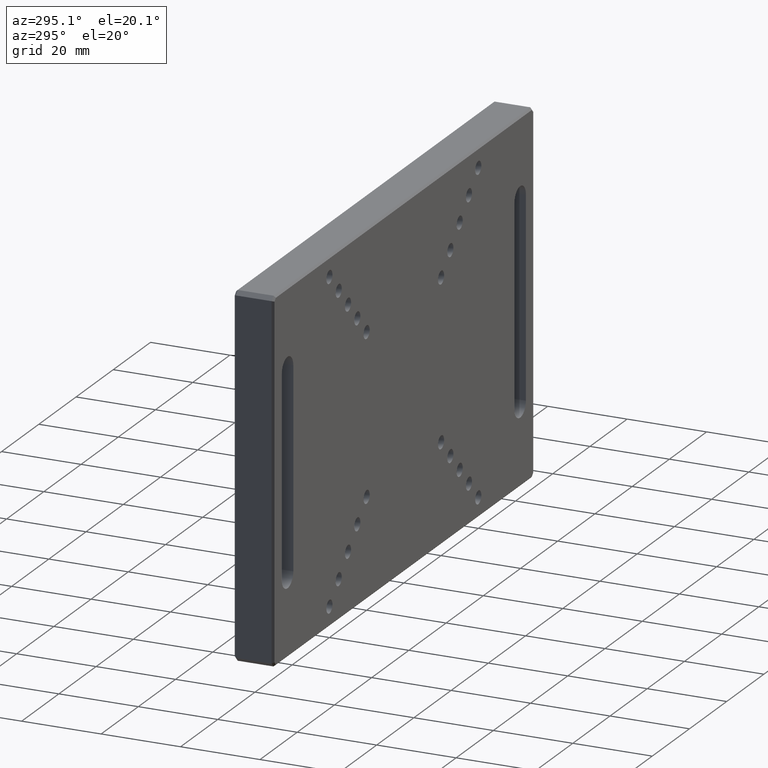
[diagram: clean part render]
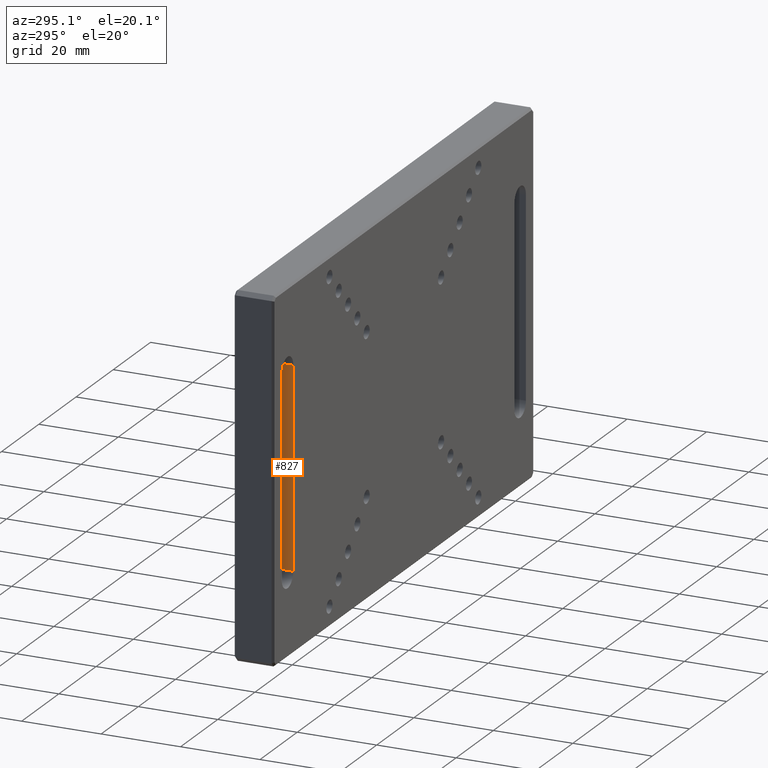
[diagram: same view with one face highlighted and labeled with its STEP entity id]
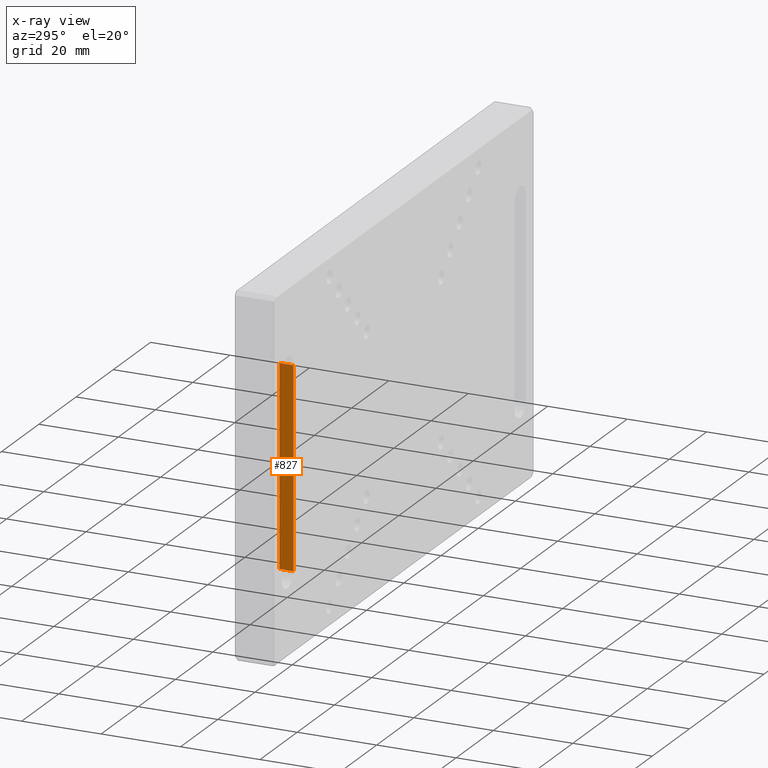
[diagram: x-ray of the same camera — body ghosted, the highlighted face saturated]
A machine part, auxiliary view. The second image highlights one B-rep face of the part: STEP entity #827.
The next image is the same camera in x-ray: the body ghosted, the highlighted face saturated — about 0% of this face is hidden behind the body in this view.
In plain terms, the highlighted planar face has unit normal (1, 0, -0).
Its self-contained STEP definition (entity closure, byte-faithful):
#1 = CARTESIAN_POINT ( 'NONE',  ( -59.40000000000001279, 3.500000000000000444, -25.00000000000000000 ) ) ;
#186 = PLANE ( 'NONE',  #1980 ) ;
#227 = VECTOR ( 'NONE', #1759, 1000.000000000000000 ) ;
#243 = CARTESIAN_POINT ( 'NONE',  ( -59.40000000000001279, 3.500000000000000444, -25.00000000000000000 ) ) ;
#266 = CARTESIAN_POINT ( 'NONE',  ( -59.40000000000001279, -2.999999999999999112, -25.00000000000000000 ) ) ;
#285 = ORIENTED_EDGE ( 'NONE', *, *, #523, .T. ) ;
#316 = VERTEX_POINT ( 'NONE', #1708 ) ;
#330 = CARTESIAN_POINT ( 'NONE',  ( -59.40000000000001279, -2.999999999999999112, 25.00000000000000000 ) ) ;
#362 = DIRECTION ( 'NONE',  ( -0.000000000000000000, 0.000000000000000000, -1.000000000000000000 ) ) ;
#503 = FACE_OUTER_BOUND ( 'NONE', #1798, .T. ) ;
#523 = EDGE_CURVE ( 'NONE', #1358, #672, #1964, .T. ) ;
#672 = VERTEX_POINT ( 'NONE', #243 ) ;
#694 = DIRECTION ( 'NONE',  ( -0.000000000000000000, 1.000000000000000000, -0.000000000000000000 ) ) ;
#790 = DIRECTION ( 'NONE',  ( -0.000000000000000000, 0.000000000000000000, -1.000000000000000000 ) ) ;
#827 = ADVANCED_FACE ( 'NONE', ( #503 ), #186, .F. ) ;
#917 = ORIENTED_EDGE ( 'NONE', *, *, #1825, .T. ) ;
#1272 = LINE ( 'NONE', #266, #1696 ) ;
#1358 = VERTEX_POINT ( 'NONE', #2532 ) ;
#1394 = DIRECTION ( 'NONE',  ( -0.000000000000000000, 1.000000000000000000, -0.000000000000000000 ) ) ;
#1461 = ORIENTED_EDGE ( 'NONE', *, *, #2155, .F. ) ;
#1495 = DIRECTION ( 'NONE',  ( 1.000000000000000000, 0.000000000000000000, -0.000000000000000000 ) ) ;
#1522 = VERTEX_POINT ( 'NONE', #1666 ) ;
#1570 = CARTESIAN_POINT ( 'NONE',  ( -59.40000000000001279, -2.999999999999999112, -25.00000000000000000 ) ) ;
#1666 = CARTESIAN_POINT ( 'NONE',  ( -59.40000000000001279, -8.673617379884035472E-16, -25.00000000000000000 ) ) ;
#1696 = VECTOR ( 'NONE', #694, 1000.000000000000000 ) ;
#1708 = CARTESIAN_POINT ( 'NONE',  ( -59.40000000000001279, -8.673617379884035472E-16, 25.00000000000000000 ) ) ;
#1759 = DIRECTION ( 'NONE',  ( -0.000000000000000000, -0.000000000000000000, -1.000000000000000000 ) ) ;
#1798 = EDGE_LOOP ( 'NONE', ( #917, #285, #2129, #1461 ) ) ;
#1825 = EDGE_CURVE ( 'NONE', #316, #1358, #2114, .T. ) ;
#1964 = LINE ( 'NONE', #1, #227 ) ;
#1980 = AXIS2_PLACEMENT_3D ( 'NONE', #1570, #1495, #790 ) ;
#2114 = LINE ( 'NONE', #330, #2586 ) ;
#2129 = ORIENTED_EDGE ( 'NONE', *, *, #2420, .F. ) ;
#2155 = EDGE_CURVE ( 'NONE', #316, #1522, #2324, .T. ) ;
#2324 = LINE ( 'NONE', #2339, #2549 ) ;
#2339 = CARTESIAN_POINT ( 'NONE',  ( -59.40000000000001279, 0.000000000000000000, 0.000000000000000000 ) ) ;
#2420 = EDGE_CURVE ( 'NONE', #1522, #672, #1272, .T. ) ;
#2532 = CARTESIAN_POINT ( 'NONE',  ( -59.40000000000001279, 3.500000000000000444, 25.00000000000000000 ) ) ;
#2549 = VECTOR ( 'NONE', #362, 1000.000000000000000 ) ;
#2586 = VECTOR ( 'NONE', #1394, 1000.000000000000000 ) ;